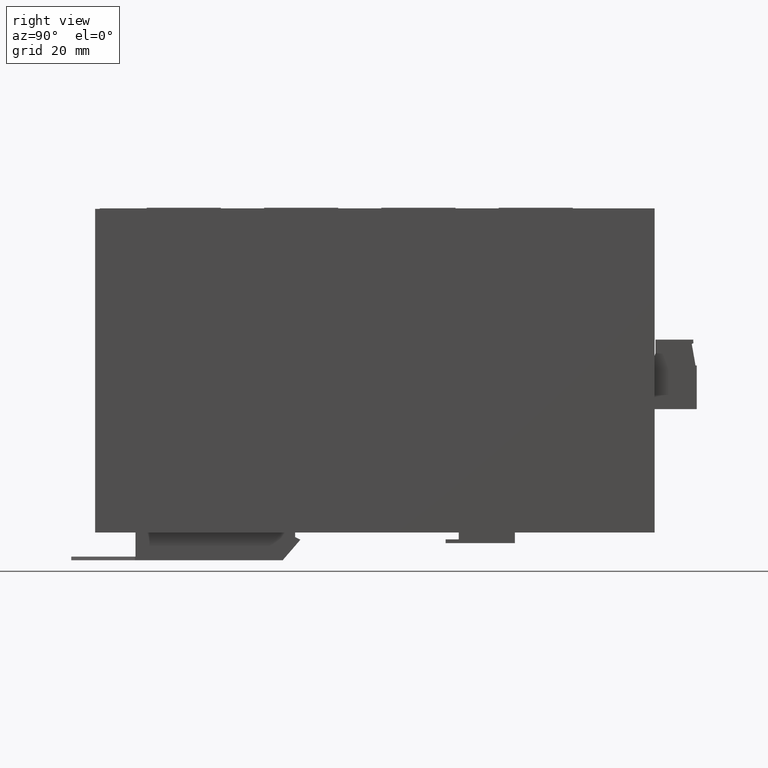
[diagram: clean part render]
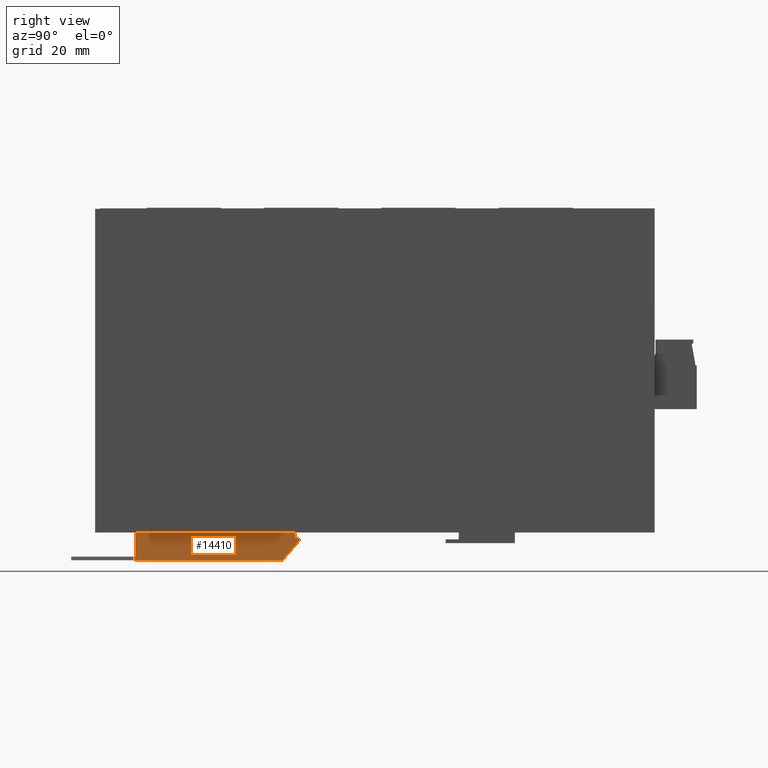
[diagram: same view with one face highlighted and labeled with its STEP entity id]
A machine part, right view. The second image highlights one B-rep face of the part: STEP entity #14410.
In plain terms, the highlighted planar face has unit normal (-1, 0, 0).
Its self-contained STEP definition (entity closure, byte-faithful):
#13700=CARTESIAN_POINT('',(-22.0123015873009,-50.0221031746032,-70.75));
#13710=DIRECTION('',(-1.,0.,0.));
#13720=DIRECTION('',(0.,0.,1.));
#13730=AXIS2_PLACEMENT_3D('',#13700,#13710,#13720);
#13740=PLANE('',#13730);
#13750=CARTESIAN_POINT('',(-22.0123015873009,0.,-80.0135069419633));
#13760=DIRECTION('',(0.,0.904523986061569,-0.426422746390587));
#13770=VECTOR('',#13760,1.);
#13780=LINE('',#13750,#13770);
#13790=CARTESIAN_POINT('',(-22.0123015873009,-19.437546180652,-70.85));
#13800=VERTEX_POINT('',#13790);
#13810=CARTESIAN_POINT('',(-22.0123015873009,-18.2921031746032,-71.39));
#13820=VERTEX_POINT('',#13810);
#13830=EDGE_CURVE('',#13800,#13820,#13780,.T.);
#13840=ORIENTED_EDGE('',*,*,#13830,.F.);
#13850=CARTESIAN_POINT('',(-22.0123015873009,69.0463721617195,
30.0499999999998));
#13860=DIRECTION('',(0.,-0.652468929913657,-0.757815475889301));
#13870=VECTOR('',#13860,1.);
#13880=LINE('',#13850,#13870);
#13890=CARTESIAN_POINT('',(-22.0123015873009,-22.1321031746031,-75.85));
#13900=VERTEX_POINT('',#13890);
#13910=EDGE_CURVE('',#13820,#13900,#13880,.T.);
#13920=ORIENTED_EDGE('',*,*,#13910,.F.);
#13930=CARTESIAN_POINT('',(-22.0123015873009,0.,-75.85));
#13940=DIRECTION('',(0.,-1.,0.));
#13950=VECTOR('',#13940,1.);
#13960=LINE('',#13930,#13950);
#13970=CARTESIAN_POINT('',(-22.0123015873009,-54.0221031746031,-75.85));
#13980=VERTEX_POINT('',#13970);
#13990=EDGE_CURVE('',#13900,#13980,#13960,.T.);
#14000=ORIENTED_EDGE('',*,*,#13990,.F.);
#14010=CARTESIAN_POINT('',(-22.0123015873009,-54.0221031746032,
30.0499999999998));
#14020=DIRECTION('',(0.,-2.29249184804401E-16,1.));
#14030=VECTOR('',#14020,1.);
#14040=LINE('',#14010,#14030);
#14050=CARTESIAN_POINT('',(-22.0123015873009,-54.0221031746031,-75.05));
#14060=VERTEX_POINT('',#14050);
#14070=EDGE_CURVE('',#13980,#14060,#14040,.T.);
#14080=ORIENTED_EDGE('',*,*,#14070,.F.);
#14090=CARTESIAN_POINT('',(-22.0123015873009,0.,-75.05));
#14100=DIRECTION('',(0.,-1.,0.));
#14110=VECTOR('',#14100,1.);
#14120=LINE('',#14090,#14110);
#14130=CARTESIAN_POINT('',(-22.0123015873009,-53.8921031746032,-75.05));
#14140=VERTEX_POINT('',#14130);
#14150=EDGE_CURVE('',#14140,#14060,#14120,.T.);
#14160=ORIENTED_EDGE('',*,*,#14150,.T.);
#14170=CARTESIAN_POINT('',(-22.0123015873009,-53.8921031746032,0.));
#14180=DIRECTION('',(0.,0.,-1.));
#14190=VECTOR('',#14180,1.);
#14200=LINE('',#14170,#14190);
#14210=CARTESIAN_POINT('',(-22.0123015873009,-53.8921031746032,-69.85));
#14220=VERTEX_POINT('',#14210);
#14230=EDGE_CURVE('',#14220,#14140,#14200,.T.);
#14240=ORIENTED_EDGE('',*,*,#14230,.T.);
#14250=CARTESIAN_POINT('',(-22.0123015873009,0.,-69.85));
#14260=DIRECTION('',(0.,1.,0.));
#14270=VECTOR('',#14260,1.);
#14280=LINE('',#14250,#14270);
#14290=CARTESIAN_POINT('',(-22.0123015873009,-19.437546180652,-69.85));
#14300=VERTEX_POINT('',#14290);
#14310=EDGE_CURVE('',#14220,#14300,#14280,.T.);
#14320=ORIENTED_EDGE('',*,*,#14310,.F.);
#14330=CARTESIAN_POINT('',(-22.0123015873009,-19.437546180652,0.));
#14340=DIRECTION('',(0.,3.84800935522525E-17,1.));
#14350=VECTOR('',#14340,1.);
#14360=LINE('',#14330,#14350);
#14370=EDGE_CURVE('',#13800,#14300,#14360,.T.);
#14380=ORIENTED_EDGE('',*,*,#14370,.T.);
#14390=EDGE_LOOP('',(#14380,#14320,#14240,#14160,#14080,#14000,#13920,
#13840));
#14400=FACE_OUTER_BOUND('',#14390,.T.);
#14410=ADVANCED_FACE('',(#14400),#13740,.F.);